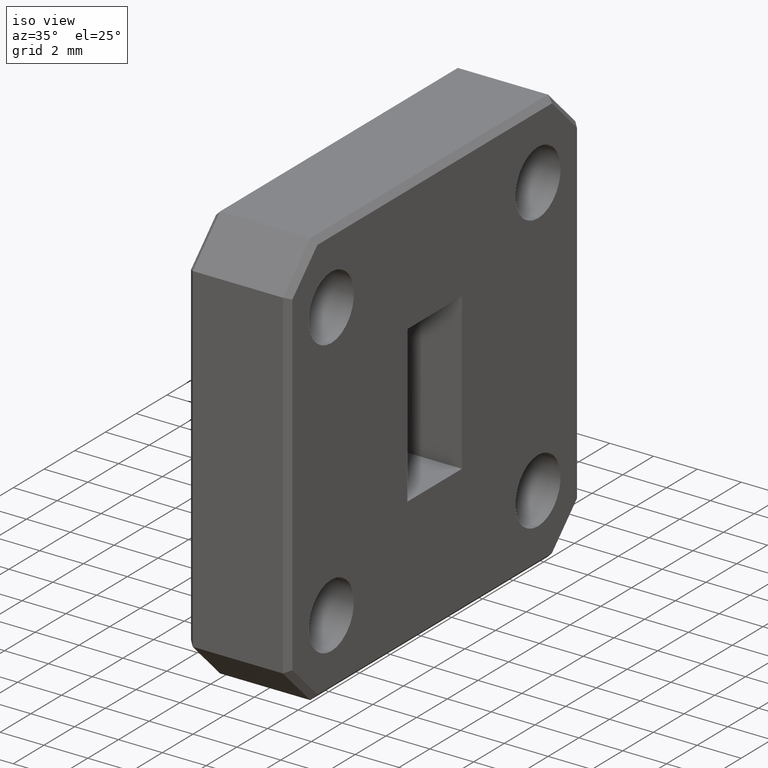
[diagram: clean part render]
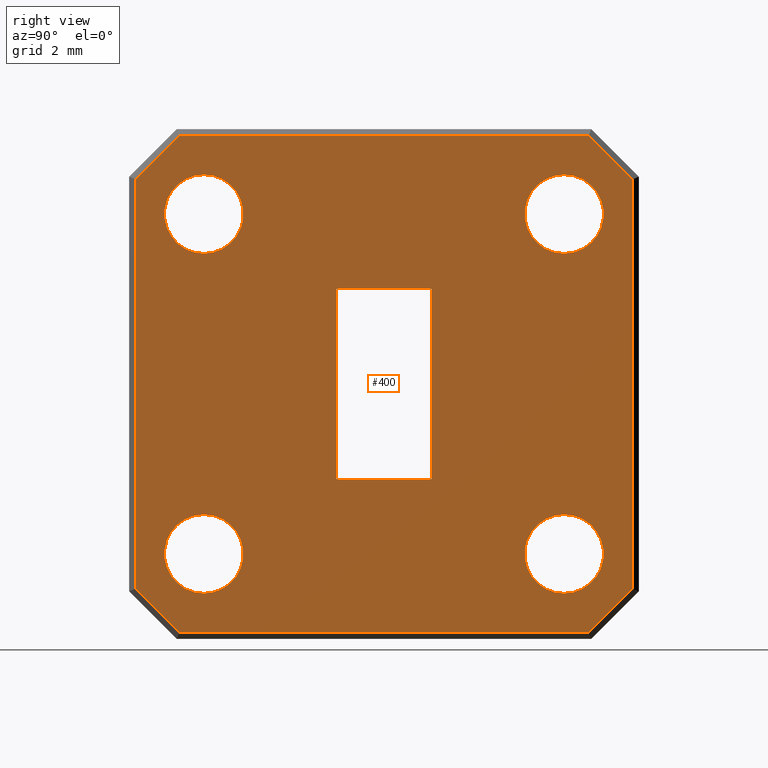
[diagram: tour spotlight — one face highlighted and labeled with its STEP entity id]
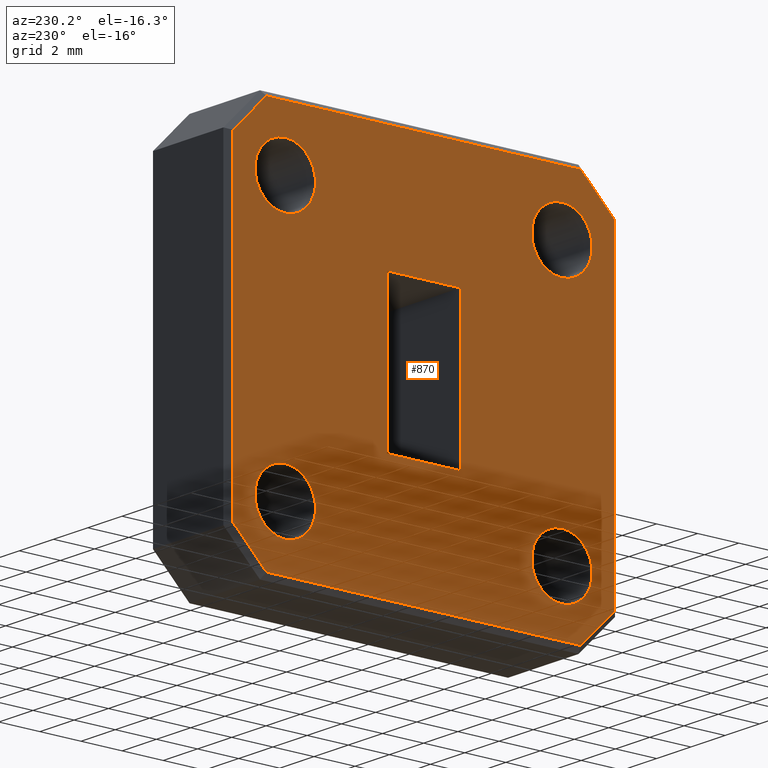
[diagram: tour spotlight — one face highlighted and labeled with its STEP entity id]
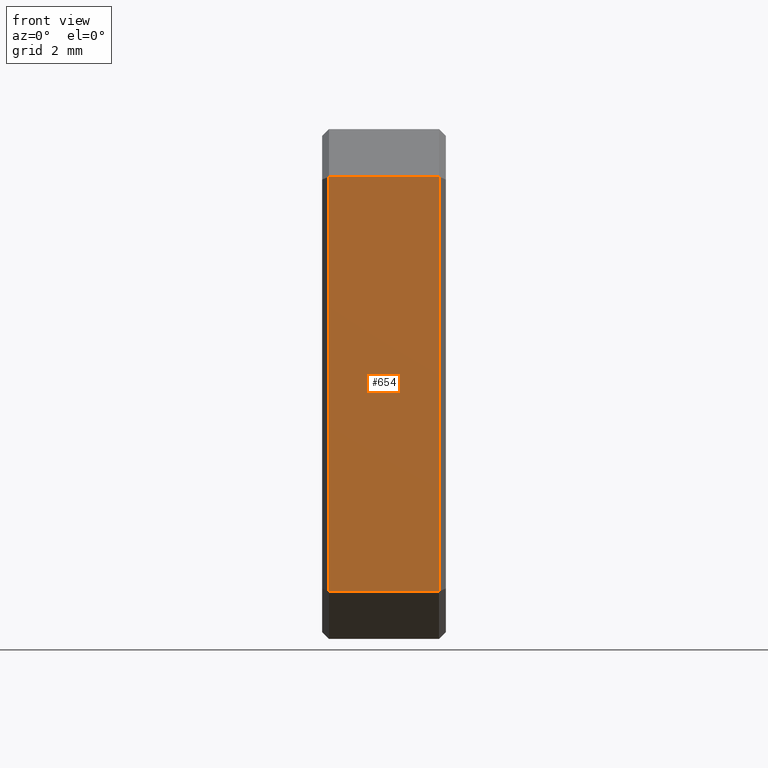
[diagram: tour spotlight — one face highlighted and labeled with its STEP entity id]
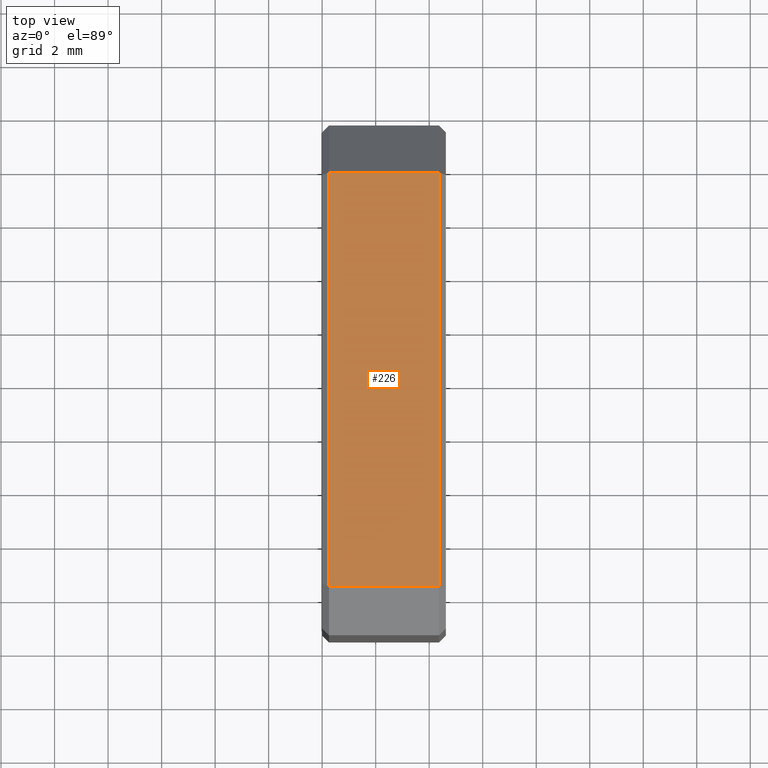
[diagram: tour spotlight — one face highlighted and labeled with its STEP entity id]
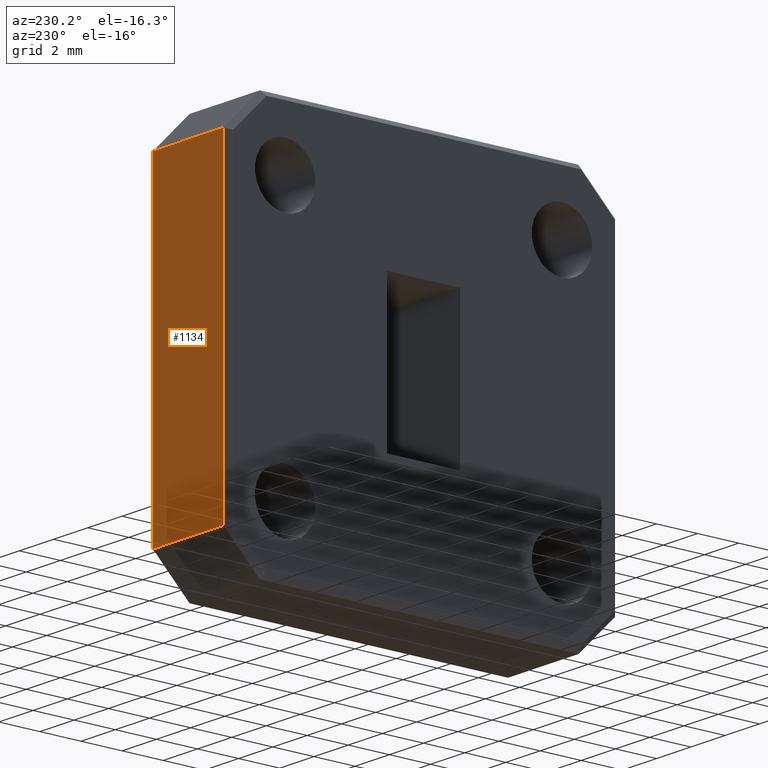
[diagram: tour spotlight — one face highlighted and labeled with its STEP entity id]
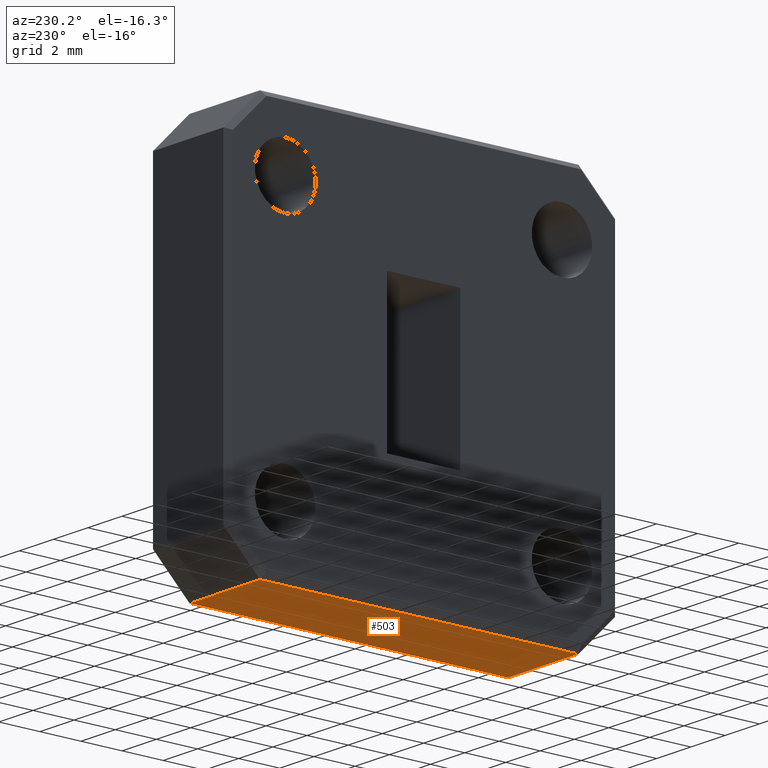
[diagram: tour spotlight — one face highlighted and labeled with its STEP entity id]
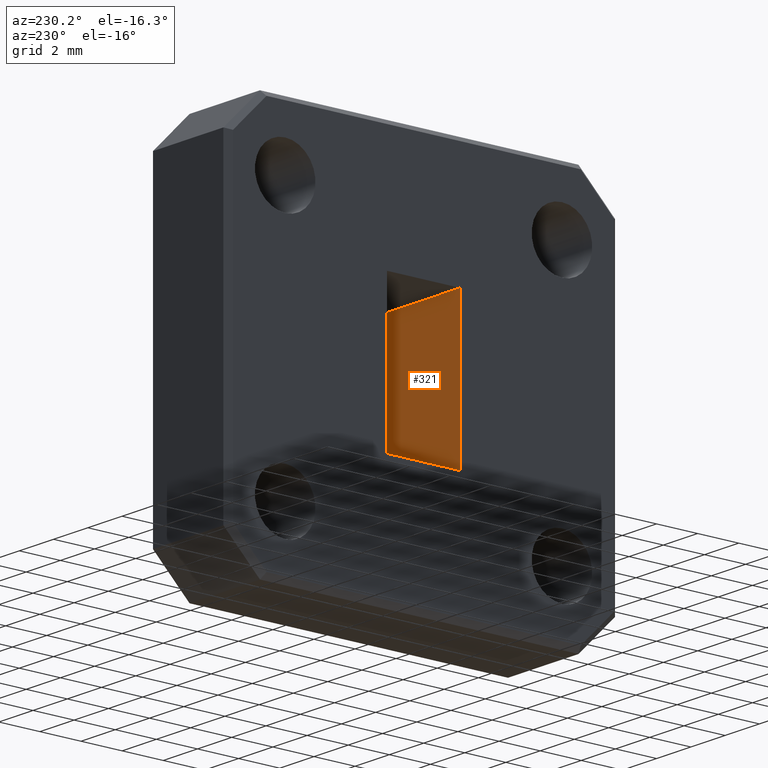
[diagram: tour spotlight — one face highlighted and labeled with its STEP entity id]
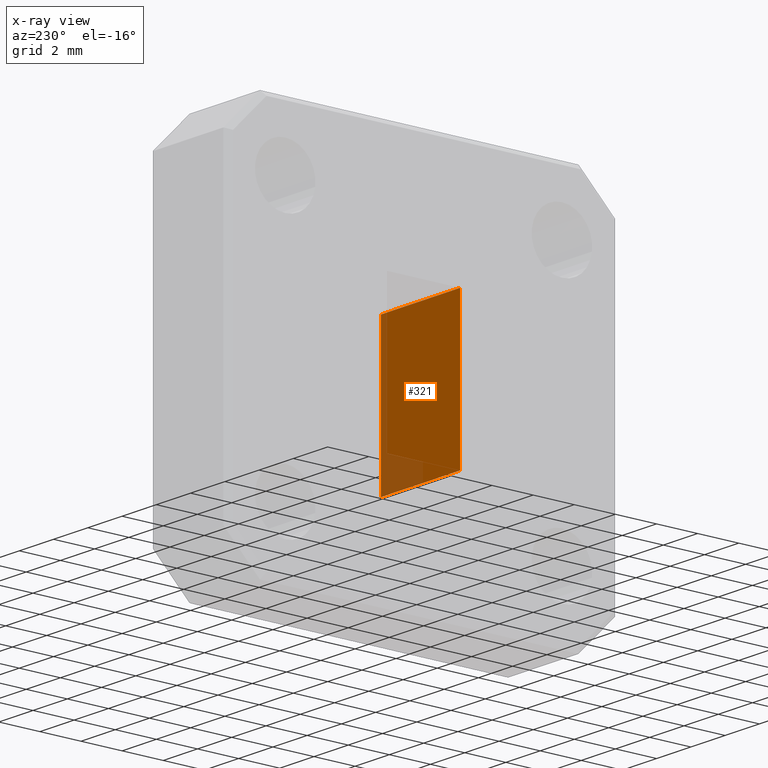
[diagram: x-ray of the same camera — body ghosted, this tour face saturated]
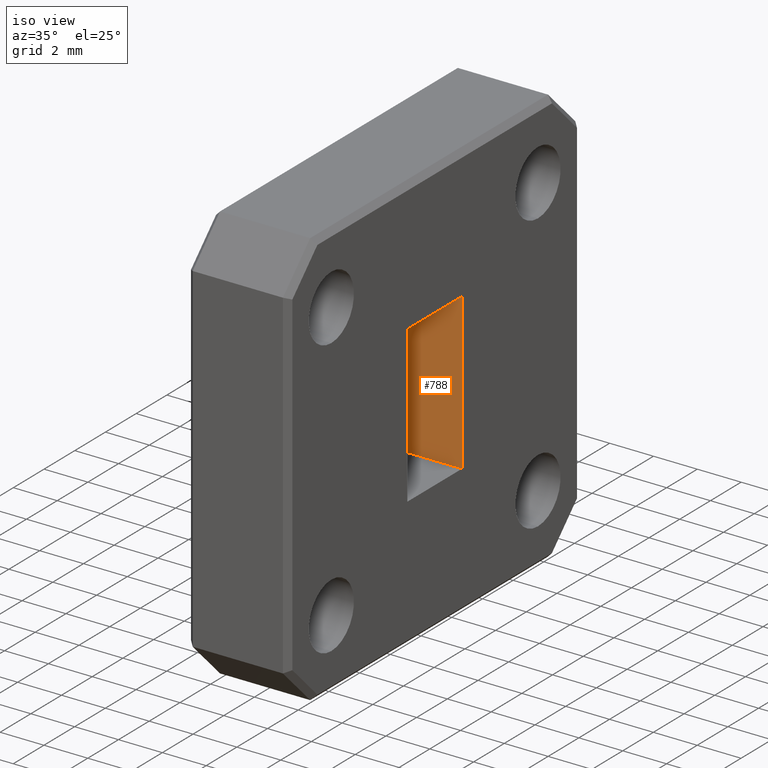
[diagram: tour spotlight — one face highlighted and labeled with its STEP entity id]
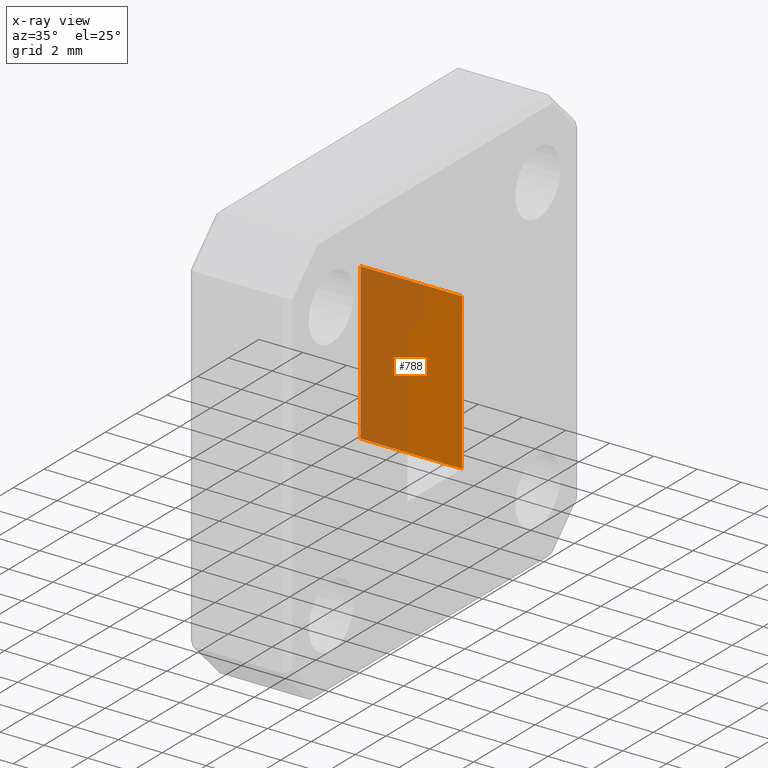
[diagram: x-ray of the same camera — body ghosted, this tour face saturated]
A machine part: a face-by-face anatomy tour. The part has 38 B-rep faces; the first image is the clean iso view, then the 8 largest visible faces are spotlighted one at a time (largest first), each with its STEP entity span.

Face 1 — right view, entity #400. In plain terms, the highlighted planar face has unit normal (1, -0, 0).
Definition (entity closure, byte-faithful):
#2 = EDGE_CURVE ( 'NONE', #771, #1099, #722, .T. ) ;
#6 = VERTEX_POINT ( 'NONE', #668 ) ;
#30 = DIRECTION ( 'NONE',  ( 0.0000000000000000000, 1.000000000000000000, 0.0000000000000000000 ) ) ;
#52 = CARTESIAN_POINT ( 'NONE',  ( 0.1820000000000000000, -0.3650000000000001600, -0.3008578643762689400 ) ) ;
#54 = EDGE_CURVE ( 'NONE', #158, #771, #574, .T. ) ;
#64 = CARTESIAN_POINT ( 'NONE',  ( 0.1820000000000000000, -0.06999999999999997900, 0.1400000000000000100 ) ) ;
#75 = DIRECTION ( 'NONE',  ( 1.000000000000000000, -0.0000000000000000000, -0.0000000000000000000 ) ) ;
#77 = CARTESIAN_POINT ( 'NONE',  ( 0.1820000000000000800, -0.2650000000000000100, 0.2500000000000000000 ) ) ;
#108 = VERTEX_POINT ( 'NONE', #52 ) ;
#118 = AXIS2_PLACEMENT_3D ( 'NONE', #501, #75, #693 ) ;
#127 = VECTOR ( 'NONE', #757, 39.37007874015748100 ) ;
#129 = CARTESIAN_POINT ( 'NONE',  ( 0.1820000000000000000, -0.3650000000000001600, -0.3049999999999998800 ) ) ;
#133 = EDGE_CURVE ( 'NONE', #1130, #902, #352, .T. ) ;
#138 = DIRECTION ( 'NONE',  ( 0.0000000000000000000, -0.7071067811865454600, 0.7071067811865495700 ) ) ;
#145 = CARTESIAN_POINT ( 'NONE',  ( 0.1820000000000000000, 0.3329289321881356300, 0.3329289321881336900 ) ) ;
#155 = LINE ( 'NONE', #283, #1097 ) ;
#158 = VERTEX_POINT ( 'NONE', #241 ) ;
#172 = CARTESIAN_POINT ( 'NONE',  ( 0.1820000000000000000, -0.06999999999999997900, 0.1400000000000000100 ) ) ;
#176 = AXIS2_PLACEMENT_3D ( 'NONE', #274, #923, #1187 ) ;
#177 = CARTESIAN_POINT ( 'NONE',  ( 0.1820000000000000800, 0.2650000000000000100, -0.2500000000000000000 ) ) ;
#182 = ORIENTED_EDGE ( 'NONE', *, *, #133, .T. ) ;
#188 = CARTESIAN_POINT ( 'NONE',  ( 0.1820000000000000800, 0.2650000000000000100, 0.2500000000000000000 ) ) ;
#194 = EDGE_LOOP ( 'NONE', ( #1158, #1144 ) ) ;
#196 = ORIENTED_EDGE ( 'NONE', *, *, #471, .F. ) ;
#200 = LINE ( 'NONE', #1177, #912 ) ;
#206 = ORIENTED_EDGE ( 'NONE', *, *, #887, .T. ) ;
#207 = CARTESIAN_POINT ( 'NONE',  ( 0.1820000000000000800, -0.2650000000000000100, 0.3079999999999995000 ) ) ;
#216 = FACE_BOUND ( 'NONE', #194, .T. ) ;
#218 = CIRCLE ( 'NONE', #1115, 0.05799999999999955900 ) ;
#225 = ORIENTED_EDGE ( 'NONE', *, *, #456, .F. ) ;
#236 = EDGE_LOOP ( 'NONE', ( #387, #196, #290, #645 ) ) ;
#237 = ORIENTED_EDGE ( 'NONE', *, *, #277, .F. ) ;
#241 = CARTESIAN_POINT ( 'NONE',  ( 0.1820000000000000000, 0.3650000000000001600, 0.3008578643762689900 ) ) ;
#246 = VERTEX_POINT ( 'NONE', #1065 ) ;
#252 = CIRCLE ( 'NONE', #176, 0.05799999999999948900 ) ;
#262 = DIRECTION ( 'NONE',  ( 1.000000000000000000, -0.0000000000000000000, -0.0000000000000000000 ) ) ;
#263 = ORIENTED_EDGE ( 'NONE', *, *, #992, .F. ) ;
#268 = FACE_BOUND ( 'NONE', #569, .T. ) ;
#269 = PLANE ( 'NONE',  #638 ) ;
#272 = CARTESIAN_POINT ( 'NONE',  ( 0.1820000000000000000, -0.3008578643762693800, -0.3650000000000000500 ) ) ;
#273 = CARTESIAN_POINT ( 'NONE',  ( 0.1820000000000000000, 0.07000000000000003400, -0.1400000000000000100 ) ) ;
#274 = CARTESIAN_POINT ( 'NONE',  ( 0.1820000000000000800, -0.2650000000000000100, 0.2500000000000000000 ) ) ;
#277 = EDGE_CURVE ( 'NONE', #499, #1162, #867, .T. ) ;
#282 = VECTOR ( 'NONE', #1102, 39.37007874015748100 ) ;
#283 = CARTESIAN_POINT ( 'NONE',  ( 0.1820000000000000000, 0.3049999999999996600, -0.3650000000000000500 ) ) ;
#290 = ORIENTED_EDGE ( 'NONE', *, *, #1003, .F. ) ;
#301 = LINE ( 'NONE', #337, #1030 ) ;
#307 = EDGE_CURVE ( 'NONE', #1160, #786, #548, .T. ) ;
#313 = VECTOR ( 'NONE', #795, 39.37007874015748100 ) ;
#320 = VERTEX_POINT ( 'NONE', #978 ) ;
#332 = DIRECTION ( 'NONE',  ( 0.0000000000000000000, 0.7071067811865489100, 0.7071067811865461300 ) ) ;
#337 = CARTESIAN_POINT ( 'NONE',  ( 0.1820000000000000000, 0.3650000000000001600, 0.3049999999999998800 ) ) ;
#352 = LINE ( 'NONE', #404, #1167 ) ;
#359 = EDGE_CURVE ( 'NONE', #989, #320, #808, .T. ) ;
#368 = VECTOR ( 'NONE', #526, 39.37007874015748100 ) ;
#387 = ORIENTED_EDGE ( 'NONE', *, *, #777, .F. ) ;
#390 = VERTEX_POINT ( 'NONE', #272 ) ;
#397 = CARTESIAN_POINT ( 'NONE',  ( 0.1820000000000000800, -0.2650000000000000100, -0.1920000000000005000 ) ) ;
#400 = ADVANCED_FACE ( 'NONE', ( #968, #618, #502, #268, #216, #928 ), #269, .T. ) ;
#402 = ORIENTED_EDGE ( 'NONE', *, *, #939, .F. ) ;
#404 = CARTESIAN_POINT ( 'NONE',  ( 0.1820000000000000000, 0.3329289321881339600, -0.3329289321881352400 ) ) ;
#420 = DIRECTION ( 'NONE',  ( 1.000000000000000000, -0.0000000000000000000, -0.0000000000000000000 ) ) ;
#440 = CARTESIAN_POINT ( 'NONE',  ( 0.1820000000000000800, 0.2650000000000000100, 0.3079999999999995500 ) ) ;
#443 = CARTESIAN_POINT ( 'NONE',  ( 0.1820000000000000000, 0.0000000000000000000, 0.0000000000000000000 ) ) ;
#446 = DIRECTION ( 'NONE',  ( 0.0000000000000000000, 0.0000000000000000000, -1.000000000000000000 ) ) ;
#447 = DIRECTION ( 'NONE',  ( 1.000000000000000000, -0.0000000000000000000, 0.0000000000000000000 ) ) ;
#452 = LINE ( 'NONE', #172, #368 ) ;
#456 = EDGE_CURVE ( 'NONE', #1106, #1074, #1053, .T. ) ;
#460 = VERTEX_POINT ( 'NONE', #807 ) ;
#469 = CARTESIAN_POINT ( 'NONE',  ( 0.1820000000000000000, 0.3008578643762693200, 0.3650000000000002100 ) ) ;
#471 = EDGE_CURVE ( 'NONE', #460, #1090, #200, .T. ) ;
#477 = CIRCLE ( 'NONE', #118, 0.05799999999999948900 ) ;
#499 = VERTEX_POINT ( 'NONE', #1071 ) ;
#501 = CARTESIAN_POINT ( 'NONE',  ( 0.1820000000000000800, -0.2650000000000000100, -0.2500000000000000000 ) ) ;
#502 = FACE_BOUND ( 'NONE', #770, .T. ) ;
#506 = EDGE_CURVE ( 'NONE', #108, #390, #840, .T. ) ;
#526 = DIRECTION ( 'NONE',  ( 0.0000000000000000000, 0.0000000000000000000, -1.000000000000000000 ) ) ;
#528 = AXIS2_PLACEMENT_3D ( 'NONE', #77, #797, #983 ) ;
#548 = CIRCLE ( 'NONE', #1141, 0.05799999999999948900 ) ;
#559 = CARTESIAN_POINT ( 'NONE',  ( 0.1820000000000000000, -0.3329289321881340200, 0.3329289321881347400 ) ) ;
#567 = ORIENTED_EDGE ( 'NONE', *, *, #724, .T. ) ;
#569 = EDGE_LOOP ( 'NONE', ( #225, #263 ) ) ;
#574 = LINE ( 'NONE', #145, #898 ) ;
#598 = VECTOR ( 'NONE', #937, 39.37007874015748100 ) ;
#600 = CARTESIAN_POINT ( 'NONE',  ( 0.1820000000000000800, -0.2650000000000000100, -0.2500000000000000000 ) ) ;
#616 = DIRECTION ( 'NONE',  ( 0.0000000000000000000, 0.0000000000000000000, -1.000000000000000000 ) ) ;
#618 = FACE_BOUND ( 'NONE', #874, .T. ) ;
#621 = CARTESIAN_POINT ( 'NONE',  ( 0.1820000000000000800, 0.2650000000000000100, -0.2500000000000000000 ) ) ;
#626 = ORIENTED_EDGE ( 'NONE', *, *, #54, .T. ) ;
#629 = VERTEX_POINT ( 'NONE', #918 ) ;
#630 = DIRECTION ( 'NONE',  ( 0.0000000000000000000, 0.0000000000000000000, -1.000000000000000000 ) ) ;
#637 = DIRECTION ( 'NONE',  ( 0.0000000000000000000, 0.0000000000000000000, -1.000000000000000000 ) ) ;
#638 = AXIS2_PLACEMENT_3D ( 'NONE', #443, #447, #630 ) ;
#641 = EDGE_CURVE ( 'NONE', #1162, #499, #252, .T. ) ;
#642 = CARTESIAN_POINT ( 'NONE',  ( 0.1820000000000000800, -0.2650000000000000100, -0.3079999999999995000 ) ) ;
#645 = ORIENTED_EDGE ( 'NONE', *, *, #880, .F. ) ;
#667 = DIRECTION ( 'NONE',  ( 0.0000000000000000000, -1.000000000000000000, -1.821231995776175700E-016 ) ) ;
#668 = CARTESIAN_POINT ( 'NONE',  ( 0.1820000000000000000, 0.07000000000000003400, 0.1400000000000000100 ) ) ;
#678 = EDGE_CURVE ( 'NONE', #390, #1130, #155, .T. ) ;
#693 = DIRECTION ( 'NONE',  ( 0.0000000000000000000, 0.0000000000000000000, -1.000000000000000000 ) ) ;
#694 = AXIS2_PLACEMENT_3D ( 'NONE', #177, #982, #446 ) ;
#695 = ORIENTED_EDGE ( 'NONE', *, *, #2, .T. ) ;
#703 = LINE ( 'NONE', #129, #127 ) ;
#718 = LINE ( 'NONE', #64, #313 ) ;
#722 = LINE ( 'NONE', #1032, #778 ) ;
#724 = EDGE_CURVE ( 'NONE', #246, #108, #703, .T. ) ;
#747 = EDGE_CURVE ( 'NONE', #1099, #246, #1110, .T. ) ;
#757 = DIRECTION ( 'NONE',  ( 0.0000000000000000000, 0.0000000000000000000, -1.000000000000000000 ) ) ;
#770 = EDGE_LOOP ( 'NONE', ( #402, #1131 ) ) ;
#771 = VERTEX_POINT ( 'NONE', #469 ) ;
#777 = EDGE_CURVE ( 'NONE', #1090, #6, #1150, .T. ) ;
#778 = VECTOR ( 'NONE', #667, 39.37007874015748100 ) ;
#786 = VERTEX_POINT ( 'NONE', #397 ) ;
#789 = DIRECTION ( 'NONE',  ( 0.0000000000000000000, 0.0000000000000000000, 1.000000000000000000 ) ) ;
#795 = DIRECTION ( 'NONE',  ( -0.0000000000000000000, -1.000000000000000000, -0.0000000000000000000 ) ) ;
#797 = DIRECTION ( 'NONE',  ( 1.000000000000000000, -0.0000000000000000000, -0.0000000000000000000 ) ) ;
#799 = EDGE_CURVE ( 'NONE', #786, #1160, #477, .T. ) ;
#807 = CARTESIAN_POINT ( 'NONE',  ( 0.1820000000000000000, -0.06999999999999997900, -0.1399999999999999900 ) ) ;
#808 = CIRCLE ( 'NONE', #876, 0.05799999999999952400 ) ;
#820 = CARTESIAN_POINT ( 'NONE',  ( 0.1820000000000000800, 0.2650000000000000100, -0.1920000000000004800 ) ) ;
#840 = LINE ( 'NONE', #986, #282 ) ;
#845 = ORIENTED_EDGE ( 'NONE', *, *, #678, .T. ) ;
#867 = CIRCLE ( 'NONE', #528, 0.05799999999999948900 ) ;
#874 = EDGE_LOOP ( 'NONE', ( #237, #1060 ) ) ;
#876 = AXIS2_PLACEMENT_3D ( 'NONE', #188, #1001, #637 ) ;
#880 = EDGE_CURVE ( 'NONE', #6, #629, #718, .T. ) ;
#887 = EDGE_CURVE ( 'NONE', #902, #158, #301, .T. ) ;
#892 = ORIENTED_EDGE ( 'NONE', *, *, #747, .T. ) ;
#894 = DIRECTION ( 'NONE',  ( 1.000000000000000000, -0.0000000000000000000, -0.0000000000000000000 ) ) ;
#895 = VECTOR ( 'NONE', #1031, 39.37007874015748100 ) ;
#898 = VECTOR ( 'NONE', #138, 39.37007874015748100 ) ;
#901 = DIRECTION ( 'NONE',  ( 0.0000000000000000000, 1.000000000000000000, -2.439149994343092200E-016 ) ) ;
#902 = VERTEX_POINT ( 'NONE', #1149 ) ;
#912 = VECTOR ( 'NONE', #901, 39.37007874015748100 ) ;
#918 = CARTESIAN_POINT ( 'NONE',  ( 0.1820000000000000000, -0.06999999999999997900, 0.1400000000000000100 ) ) ;
#923 = DIRECTION ( 'NONE',  ( 1.000000000000000000, -0.0000000000000000000, -0.0000000000000000000 ) ) ;
#928 = FACE_OUTER_BOUND ( 'NONE', #938, .T. ) ;
#937 = DIRECTION ( 'NONE',  ( -0.0000000000000000000, -0.0000000000000000000, 1.000000000000000000 ) ) ;
#938 = EDGE_LOOP ( 'NONE', ( #206, #626, #695, #892, #567, #953, #845, #182 ) ) ;
#939 = EDGE_CURVE ( 'NONE', #320, #989, #1128, .T. ) ;
#953 = ORIENTED_EDGE ( 'NONE', *, *, #506, .T. ) ;
#968 = FACE_BOUND ( 'NONE', #236, .T. ) ;
#975 = CARTESIAN_POINT ( 'NONE',  ( 0.1820000000000000800, 0.2650000000000000100, 0.2500000000000000000 ) ) ;
#978 = CARTESIAN_POINT ( 'NONE',  ( 0.1820000000000000800, 0.2650000000000000100, 0.1920000000000004800 ) ) ;
#982 = DIRECTION ( 'NONE',  ( 1.000000000000000000, -0.0000000000000000000, -0.0000000000000000000 ) ) ;
#983 = DIRECTION ( 'NONE',  ( 0.0000000000000000000, 0.0000000000000000000, -1.000000000000000000 ) ) ;
#986 = CARTESIAN_POINT ( 'NONE',  ( 0.1820000000000000000, -0.3329289321881356300, -0.3329289321881336900 ) ) ;
#989 = VERTEX_POINT ( 'NONE', #440 ) ;
#992 = EDGE_CURVE ( 'NONE', #1074, #1106, #218, .T. ) ;
#1001 = DIRECTION ( 'NONE',  ( 1.000000000000000000, -0.0000000000000000000, -0.0000000000000000000 ) ) ;
#1003 = EDGE_CURVE ( 'NONE', #629, #460, #452, .T. ) ;
#1015 = CARTESIAN_POINT ( 'NONE',  ( 0.1820000000000000000, -0.3008578643762686000, 0.3650000000000000500 ) ) ;
#1023 = CARTESIAN_POINT ( 'NONE',  ( 0.1820000000000000000, 0.3008578643762690500, -0.3650000000000000500 ) ) ;
#1030 = VECTOR ( 'NONE', #789, 39.37007874015748100 ) ;
#1031 = DIRECTION ( 'NONE',  ( 0.0000000000000000000, -0.7071067811865482400, -0.7071067811865468000 ) ) ;
#1032 = CARTESIAN_POINT ( 'NONE',  ( 0.1820000000000000000, -0.3049999999999996600, 0.3650000000000000500 ) ) ;
#1053 = CIRCLE ( 'NONE', #694, 0.05799999999999955900 ) ;
#1054 = AXIS2_PLACEMENT_3D ( 'NONE', #975, #420, #1070 ) ;
#1060 = ORIENTED_EDGE ( 'NONE', *, *, #641, .F. ) ;
#1065 = CARTESIAN_POINT ( 'NONE',  ( 0.1820000000000000000, -0.3650000000000001600, 0.3008578643762687100 ) ) ;
#1070 = DIRECTION ( 'NONE',  ( 0.0000000000000000000, 0.0000000000000000000, -1.000000000000000000 ) ) ;
#1071 = CARTESIAN_POINT ( 'NONE',  ( 0.1820000000000000800, -0.2650000000000000100, 0.1920000000000005000 ) ) ;
#1074 = VERTEX_POINT ( 'NONE', #820 ) ;
#1090 = VERTEX_POINT ( 'NONE', #273 ) ;
#1097 = VECTOR ( 'NONE', #30, 39.37007874015748100 ) ;
#1099 = VERTEX_POINT ( 'NONE', #1015 ) ;
#1102 = DIRECTION ( 'NONE',  ( 0.0000000000000000000, 0.7071067811865454600, -0.7071067811865495700 ) ) ;
#1106 = VERTEX_POINT ( 'NONE', #1172 ) ;
#1110 = LINE ( 'NONE', #559, #895 ) ;
#1115 = AXIS2_PLACEMENT_3D ( 'NONE', #621, #262, #616 ) ;
#1116 = CARTESIAN_POINT ( 'NONE',  ( 0.1820000000000000000, 0.07000000000000003400, 0.1400000000000000100 ) ) ;
#1128 = CIRCLE ( 'NONE', #1054, 0.05799999999999952400 ) ;
#1130 = VERTEX_POINT ( 'NONE', #1023 ) ;
#1131 = ORIENTED_EDGE ( 'NONE', *, *, #359, .F. ) ;
#1141 = AXIS2_PLACEMENT_3D ( 'NONE', #600, #894, #1159 ) ;
#1144 = ORIENTED_EDGE ( 'NONE', *, *, #799, .F. ) ;
#1149 = CARTESIAN_POINT ( 'NONE',  ( 0.1820000000000000000, 0.3650000000000001600, -0.3008578643762692100 ) ) ;
#1150 = LINE ( 'NONE', #1116, #598 ) ;
#1158 = ORIENTED_EDGE ( 'NONE', *, *, #307, .F. ) ;
#1159 = DIRECTION ( 'NONE',  ( 0.0000000000000000000, 0.0000000000000000000, -1.000000000000000000 ) ) ;
#1160 = VERTEX_POINT ( 'NONE', #642 ) ;
#1162 = VERTEX_POINT ( 'NONE', #207 ) ;
#1167 = VECTOR ( 'NONE', #332, 39.37007874015748100 ) ;
#1172 = CARTESIAN_POINT ( 'NONE',  ( 0.1820000000000000800, 0.2650000000000000100, -0.3079999999999995500 ) ) ;
#1177 = CARTESIAN_POINT ( 'NONE',  ( 0.1820000000000000000, -0.06999999999999997900, -0.1399999999999999900 ) ) ;
#1187 = DIRECTION ( 'NONE',  ( 0.0000000000000000000, 0.0000000000000000000, -1.000000000000000000 ) ) ;

Face 2 — auxiliary view, entity #870. In plain terms, the highlighted planar face has unit normal (1, -0, 0).
Definition (entity closure, byte-faithful):
#11 = EDGE_CURVE ( 'NONE', #250, #787, #751, .T. ) ;
#13 = CIRCLE ( 'NONE', #617, 0.05799999999999973200 ) ;
#18 = CARTESIAN_POINT ( 'NONE',  ( 0.0000000000000000000, -0.2650000000000000100, 0.1920000000000002500 ) ) ;
#20 = ORIENTED_EDGE ( 'NONE', *, *, #197, .T. ) ;
#21 = EDGE_LOOP ( 'NONE', ( #442, #38 ) ) ;
#27 = EDGE_CURVE ( 'NONE', #364, #483, #689, .T. ) ;
#32 = AXIS2_PLACEMENT_3D ( 'NONE', #595, #244, #701 ) ;
#37 = ORIENTED_EDGE ( 'NONE', *, *, #374, .F. ) ;
#38 = ORIENTED_EDGE ( 'NONE', *, *, #1058, .T. ) ;
#44 = VERTEX_POINT ( 'NONE', #755 ) ;
#47 = ORIENTED_EDGE ( 'NONE', *, *, #551, .T. ) ;
#59 = CARTESIAN_POINT ( 'NONE',  ( 0.0000000000000000000, 0.0000000000000000000, 0.0000000000000000000 ) ) ;
#60 = CARTESIAN_POINT ( 'NONE',  ( 0.0000000000000000000, -0.3649999999999999900, 0.3008578643762688200 ) ) ;
#66 = ORIENTED_EDGE ( 'NONE', *, *, #631, .T. ) ;
#67 = CARTESIAN_POINT ( 'NONE',  ( 0.0000000000000000000, 0.2979289321881343800, -0.3679289321881346100 ) ) ;
#70 = AXIS2_PLACEMENT_3D ( 'NONE', #432, #85, #76 ) ;
#72 = CIRCLE ( 'NONE', #70, 0.05799999999999969800 ) ;
#76 = DIRECTION ( 'NONE',  ( 0.0000000000000000000, 0.0000000000000000000, -1.000000000000000000 ) ) ;
#78 = CARTESIAN_POINT ( 'NONE',  ( 0.0000000000000000000, 0.2650000000000000100, -0.1920000000000002500 ) ) ;
#79 = VERTEX_POINT ( 'NONE', #970 ) ;
#85 = DIRECTION ( 'NONE',  ( 1.000000000000000000, -0.0000000000000000000, 0.0000000000000000000 ) ) ;
#89 = CARTESIAN_POINT ( 'NONE',  ( 0.0000000000000000000, 0.3008578643762690500, -0.3649999999999999400 ) ) ;
#90 = AXIS2_PLACEMENT_3D ( 'NONE', #162, #1170, #160 ) ;
#93 = EDGE_CURVE ( 'NONE', #165, #250, #868, .T. ) ;
#106 = DIRECTION ( 'NONE',  ( 0.0000000000000000000, -1.000000000000000000, 0.0000000000000000000 ) ) ;
#130 = LINE ( 'NONE', #800, #355 ) ;
#134 = DIRECTION ( 'NONE',  ( -0.0000000000000000000, -1.000000000000000000, 2.439149994343092200E-016 ) ) ;
#146 = ORIENTED_EDGE ( 'NONE', *, *, #1085, .F. ) ;
#160 = DIRECTION ( 'NONE',  ( 0.0000000000000000000, 0.0000000000000000000, -1.000000000000000000 ) ) ;
#161 = DIRECTION ( 'NONE',  ( 0.0000000000000000000, 0.0000000000000000000, -1.000000000000000000 ) ) ;
#162 = CARTESIAN_POINT ( 'NONE',  ( 0.0000000000000000000, 0.2650000000000000100, 0.2500000000000000000 ) ) ;
#165 = VERTEX_POINT ( 'NONE', #676 ) ;
#168 = LINE ( 'NONE', #728, #1010 ) ;
#175 = DIRECTION ( 'NONE',  ( 1.000000000000000000, -0.0000000000000000000, 0.0000000000000000000 ) ) ;
#185 = FACE_BOUND ( 'NONE', #801, .T. ) ;
#190 = CARTESIAN_POINT ( 'NONE',  ( 0.0000000000000000000, -0.2650000000000000100, -0.2500000000000000000 ) ) ;
#197 = EDGE_CURVE ( 'NONE', #223, #165, #1111, .T. ) ;
#208 = ORIENTED_EDGE ( 'NONE', *, *, #871, .T. ) ;
#211 = CARTESIAN_POINT ( 'NONE',  ( 0.0000000000000000000, 0.3649999999999999900, 0.3008578643762689400 ) ) ;
#213 = CARTESIAN_POINT ( 'NONE',  ( 0.0000000000000000000, 0.3679289321881344900, 0.2979289321881344300 ) ) ;
#223 = VERTEX_POINT ( 'NONE', #60 ) ;
#233 = DIRECTION ( 'NONE',  ( 0.0000000000000000000, 1.000000000000000000, 1.821231995776175700E-016 ) ) ;
#240 = LINE ( 'NONE', #67, #733 ) ;
#244 = DIRECTION ( 'NONE',  ( 1.000000000000000000, -0.0000000000000000000, 0.0000000000000000000 ) ) ;
#245 = EDGE_CURVE ( 'NONE', #644, #1037, #240, .T. ) ;
#250 = VERTEX_POINT ( 'NONE', #705 ) ;
#253 = EDGE_CURVE ( 'NONE', #483, #495, #465, .T. ) ;
#254 = CIRCLE ( 'NONE', #90, 0.05799999999999973200 ) ;
#257 = DIRECTION ( 'NONE',  ( 0.0000000000000000000, 0.0000000000000000000, -1.000000000000000000 ) ) ;
#259 = CARTESIAN_POINT ( 'NONE',  ( 0.0000000000000000000, -0.06999999999999999300, 0.1400000000000000100 ) ) ;
#265 = DIRECTION ( 'NONE',  ( 0.0000000000000000000, 1.000000000000000000, 0.0000000000000000000 ) ) ;
#299 = LINE ( 'NONE', #822, #995 ) ;
#315 = EDGE_CURVE ( 'NONE', #79, #756, #254, .T. ) ;
#319 = AXIS2_PLACEMENT_3D ( 'NONE', #1066, #1157, #257 ) ;
#329 = ORIENTED_EDGE ( 'NONE', *, *, #479, .T. ) ;
#343 = CARTESIAN_POINT ( 'NONE',  ( 0.0000000000000000000, -0.06999999999999999300, 0.1400000000000000100 ) ) ;
#355 = VECTOR ( 'NONE', #884, 39.37007874015748100 ) ;
#364 = VERTEX_POINT ( 'NONE', #537 ) ;
#374 = EDGE_CURVE ( 'NONE', #495, #399, #299, .T. ) ;
#385 = CARTESIAN_POINT ( 'NONE',  ( 0.0000000000000000000, 0.2650000000000000100, 0.1920000000000002500 ) ) ;
#396 = ORIENTED_EDGE ( 'NONE', *, *, #245, .T. ) ;
#399 = VERTEX_POINT ( 'NONE', #623 ) ;
#427 = ORIENTED_EDGE ( 'NONE', *, *, #11, .T. ) ;
#429 = EDGE_CURVE ( 'NONE', #873, #44, #72, .T. ) ;
#432 = CARTESIAN_POINT ( 'NONE',  ( 0.0000000000000000000, -0.2650000000000000100, -0.2500000000000000000 ) ) ;
#434 = DIRECTION ( 'NONE',  ( 0.0000000000000000000, 0.0000000000000000000, 1.000000000000000000 ) ) ;
#441 = CARTESIAN_POINT ( 'NONE',  ( 0.0000000000000000000, -0.06999999999999999300, -0.1399999999999999900 ) ) ;
#442 = ORIENTED_EDGE ( 'NONE', *, *, #429, .T. ) ;
#455 = DIRECTION ( 'NONE',  ( 1.000000000000000000, -0.0000000000000000000, 0.0000000000000000000 ) ) ;
#463 = CARTESIAN_POINT ( 'NONE',  ( 0.0000000000000000000, -0.2650000000000000100, 0.2500000000000000000 ) ) ;
#465 = LINE ( 'NONE', #343, #750 ) ;
#467 = CARTESIAN_POINT ( 'NONE',  ( 0.0000000000000000000, 0.3649999999999999900, 0.0000000000000000000 ) ) ;
#473 = EDGE_LOOP ( 'NONE', ( #1017, #890 ) ) ;
#479 = EDGE_CURVE ( 'NONE', #513, #922, #791, .T. ) ;
#481 = DIRECTION ( 'NONE',  ( 1.000000000000000000, -0.0000000000000000000, 0.0000000000000000000 ) ) ;
#483 = VERTEX_POINT ( 'NONE', #441 ) ;
#492 = CARTESIAN_POINT ( 'NONE',  ( 0.0000000000000000000, -6.647496784583041200E-017, 0.3649999999999999900 ) ) ;
#495 = VERTEX_POINT ( 'NONE', #259 ) ;
#513 = VERTEX_POINT ( 'NONE', #927 ) ;
#515 = PLANE ( 'NONE',  #1151 ) ;
#517 = LINE ( 'NONE', #467, #599 ) ;
#519 = VECTOR ( 'NONE', #1147, 39.37007874015748100 ) ;
#522 = DIRECTION ( 'NONE',  ( 1.000000000000000000, -0.0000000000000000000, 0.0000000000000000000 ) ) ;
#531 = EDGE_CURVE ( 'NONE', #1073, #542, #546, .T. ) ;
#537 = CARTESIAN_POINT ( 'NONE',  ( 0.0000000000000000000, 0.07000000000000002100, -0.1400000000000000100 ) ) ;
#542 = VERTEX_POINT ( 'NONE', #18 ) ;
#545 = CARTESIAN_POINT ( 'NONE',  ( 0.0000000000000000000, -0.3679289321881345500, -0.2979289321881344300 ) ) ;
#546 = CIRCLE ( 'NONE', #1075, 0.05799999999999973200 ) ;
#549 = LINE ( 'NONE', #915, #946 ) ;
#551 = EDGE_CURVE ( 'NONE', #787, #644, #517, .T. ) ;
#555 = CARTESIAN_POINT ( 'NONE',  ( 0.0000000000000000000, 0.3649999999999999900, -0.3008578643762692700 ) ) ;
#595 = CARTESIAN_POINT ( 'NONE',  ( 0.0000000000000000000, 0.2650000000000000100, -0.2500000000000000000 ) ) ;
#599 = VECTOR ( 'NONE', #1093, 39.37007874015748100 ) ;
#617 = AXIS2_PLACEMENT_3D ( 'NONE', #1034, #481, #1121 ) ;
#619 = VECTOR ( 'NONE', #233, 39.37007874015748100 ) ;
#623 = CARTESIAN_POINT ( 'NONE',  ( 0.0000000000000000000, 0.07000000000000002100, 0.1400000000000000100 ) ) ;
#631 = EDGE_CURVE ( 'NONE', #1037, #818, #168, .T. ) ;
#632 = CARTESIAN_POINT ( 'NONE',  ( 0.0000000000000000000, -0.2650000000000000100, 0.3079999999999997700 ) ) ;
#644 = VERTEX_POINT ( 'NONE', #555 ) ;
#661 = CARTESIAN_POINT ( 'NONE',  ( 0.0000000000000000000, -0.3008578643762693800, -0.3649999999999999400 ) ) ;
#663 = FACE_BOUND ( 'NONE', #1088, .T. ) ;
#676 = CARTESIAN_POINT ( 'NONE',  ( 0.0000000000000000000, -0.3008578643762687700, 0.3649999999999999400 ) ) ;
#689 = LINE ( 'NONE', #752, #1153 ) ;
#691 = CIRCLE ( 'NONE', #319, 0.05799999999999973200 ) ;
#701 = DIRECTION ( 'NONE',  ( 0.0000000000000000000, 0.0000000000000000000, -1.000000000000000000 ) ) ;
#705 = CARTESIAN_POINT ( 'NONE',  ( 0.0000000000000000000, 0.3008578643762692100, 0.3650000000000000500 ) ) ;
#728 = CARTESIAN_POINT ( 'NONE',  ( 0.0000000000000000000, -0.0000000000000000000, -0.3649999999999999400 ) ) ;
#730 = DIRECTION ( 'NONE',  ( 0.0000000000000000000, 0.0000000000000000000, -1.000000000000000000 ) ) ;
#733 = VECTOR ( 'NONE', #972, 39.37007874015748100 ) ;
#738 = EDGE_CURVE ( 'NONE', #542, #1073, #13, .T. ) ;
#742 = ORIENTED_EDGE ( 'NONE', *, *, #93, .T. ) ;
#749 = FACE_BOUND ( 'NONE', #473, .T. ) ;
#750 = VECTOR ( 'NONE', #434, 39.37007874015748100 ) ;
#751 = LINE ( 'NONE', #213, #943 ) ;
#752 = CARTESIAN_POINT ( 'NONE',  ( 0.0000000000000000000, -0.06999999999999999300, -0.1399999999999999900 ) ) ;
#755 = CARTESIAN_POINT ( 'NONE',  ( 0.0000000000000000000, -0.2650000000000000100, -0.1920000000000002500 ) ) ;
#756 = VERTEX_POINT ( 'NONE', #385 ) ;
#758 = ORIENTED_EDGE ( 'NONE', *, *, #963, .T. ) ;
#761 = DIRECTION ( 'NONE',  ( 0.0000000000000000000, 0.7071067811865454600, -0.7071067811865495700 ) ) ;
#766 = VECTOR ( 'NONE', #934, 39.37007874015748100 ) ;
#767 = AXIS2_PLACEMENT_3D ( 'NONE', #190, #175, #1091 ) ;
#785 = ORIENTED_EDGE ( 'NONE', *, *, #27, .F. ) ;
#787 = VERTEX_POINT ( 'NONE', #211 ) ;
#791 = CIRCLE ( 'NONE', #824, 0.05799999999999969800 ) ;
#800 = CARTESIAN_POINT ( 'NONE',  ( 0.0000000000000000000, -0.3649999999999999900, 0.0000000000000000000 ) ) ;
#801 = EDGE_LOOP ( 'NONE', ( #863, #974 ) ) ;
#802 = DIRECTION ( 'NONE',  ( 0.0000000000000000000, 0.0000000000000000000, -1.000000000000000000 ) ) ;
#813 = DIRECTION ( 'NONE',  ( 1.000000000000000000, -0.0000000000000000000, 0.0000000000000000000 ) ) ;
#818 = VERTEX_POINT ( 'NONE', #661 ) ;
#821 = EDGE_LOOP ( 'NONE', ( #329, #208 ) ) ;
#822 = CARTESIAN_POINT ( 'NONE',  ( 0.0000000000000000000, -0.06999999999999999300, 0.1400000000000000100 ) ) ;
#824 = AXIS2_PLACEMENT_3D ( 'NONE', #1087, #813, #802 ) ;
#826 = DIRECTION ( 'NONE',  ( 0.0000000000000000000, 0.0000000000000000000, -1.000000000000000000 ) ) ;
#835 = EDGE_LOOP ( 'NONE', ( #66, #996, #758, #20, #742, #427, #47, #396 ) ) ;
#852 = CIRCLE ( 'NONE', #32, 0.05799999999999969800 ) ;
#856 = LINE ( 'NONE', #545, #766 ) ;
#863 = ORIENTED_EDGE ( 'NONE', *, *, #738, .T. ) ;
#868 = LINE ( 'NONE', #492, #619 ) ;
#870 = ADVANCED_FACE ( 'NONE', ( #663, #185, #749, #993, #1124, #1095 ), #515, .F. ) ;
#871 = EDGE_CURVE ( 'NONE', #922, #513, #852, .T. ) ;
#873 = VERTEX_POINT ( 'NONE', #1166 ) ;
#884 = DIRECTION ( 'NONE',  ( 0.0000000000000000000, 0.0000000000000000000, 1.000000000000000000 ) ) ;
#890 = ORIENTED_EDGE ( 'NONE', *, *, #315, .T. ) ;
#915 = CARTESIAN_POINT ( 'NONE',  ( 0.0000000000000000000, 0.07000000000000002100, 0.1400000000000000100 ) ) ;
#919 = VERTEX_POINT ( 'NONE', #1155 ) ;
#922 = VERTEX_POINT ( 'NONE', #78 ) ;
#927 = CARTESIAN_POINT ( 'NONE',  ( 0.0000000000000000000, 0.2650000000000000100, -0.3079999999999997200 ) ) ;
#934 = DIRECTION ( 'NONE',  ( 0.0000000000000000000, -0.7071067811865454600, 0.7071067811865495700 ) ) ;
#943 = VECTOR ( 'NONE', #761, 39.37007874015748100 ) ;
#946 = VECTOR ( 'NONE', #730, 39.37007874015748100 ) ;
#952 = EDGE_CURVE ( 'NONE', #756, #79, #691, .T. ) ;
#963 = EDGE_CURVE ( 'NONE', #919, #223, #130, .T. ) ;
#970 = CARTESIAN_POINT ( 'NONE',  ( 0.0000000000000000000, 0.2650000000000000100, 0.3079999999999997700 ) ) ;
#972 = DIRECTION ( 'NONE',  ( 0.0000000000000000000, -0.7071067811865489100, -0.7071067811865461300 ) ) ;
#974 = ORIENTED_EDGE ( 'NONE', *, *, #531, .T. ) ;
#993 = FACE_BOUND ( 'NONE', #821, .T. ) ;
#995 = VECTOR ( 'NONE', #265, 39.37007874015748100 ) ;
#996 = ORIENTED_EDGE ( 'NONE', *, *, #1127, .T. ) ;
#1010 = VECTOR ( 'NONE', #106, 39.37007874015748100 ) ;
#1017 = ORIENTED_EDGE ( 'NONE', *, *, #952, .T. ) ;
#1034 = CARTESIAN_POINT ( 'NONE',  ( 0.0000000000000000000, -0.2650000000000000100, 0.2500000000000000000 ) ) ;
#1037 = VERTEX_POINT ( 'NONE', #89 ) ;
#1042 = CIRCLE ( 'NONE', #767, 0.05799999999999969800 ) ;
#1051 = CARTESIAN_POINT ( 'NONE',  ( 0.0000000000000000000, -0.2979289321881342100, 0.3679289321881344900 ) ) ;
#1058 = EDGE_CURVE ( 'NONE', #44, #873, #1042, .T. ) ;
#1066 = CARTESIAN_POINT ( 'NONE',  ( 0.0000000000000000000, 0.2650000000000000100, 0.2500000000000000000 ) ) ;
#1073 = VERTEX_POINT ( 'NONE', #632 ) ;
#1075 = AXIS2_PLACEMENT_3D ( 'NONE', #463, #455, #826 ) ;
#1085 = EDGE_CURVE ( 'NONE', #399, #364, #549, .T. ) ;
#1087 = CARTESIAN_POINT ( 'NONE',  ( 0.0000000000000000000, 0.2650000000000000100, -0.2500000000000000000 ) ) ;
#1088 = EDGE_LOOP ( 'NONE', ( #785, #146, #37, #1107 ) ) ;
#1091 = DIRECTION ( 'NONE',  ( 0.0000000000000000000, 0.0000000000000000000, -1.000000000000000000 ) ) ;
#1093 = DIRECTION ( 'NONE',  ( 0.0000000000000000000, 0.0000000000000000000, -1.000000000000000000 ) ) ;
#1095 = FACE_OUTER_BOUND ( 'NONE', #835, .T. ) ;
#1107 = ORIENTED_EDGE ( 'NONE', *, *, #253, .F. ) ;
#1111 = LINE ( 'NONE', #1051, #519 ) ;
#1121 = DIRECTION ( 'NONE',  ( 0.0000000000000000000, 0.0000000000000000000, -1.000000000000000000 ) ) ;
#1124 = FACE_BOUND ( 'NONE', #21, .T. ) ;
#1127 = EDGE_CURVE ( 'NONE', #818, #919, #856, .T. ) ;
#1147 = DIRECTION ( 'NONE',  ( 0.0000000000000000000, 0.7071067811865482400, 0.7071067811865468000 ) ) ;
#1151 = AXIS2_PLACEMENT_3D ( 'NONE', #59, #522, #161 ) ;
#1153 = VECTOR ( 'NONE', #134, 39.37007874015748100 ) ;
#1155 = CARTESIAN_POINT ( 'NONE',  ( 0.0000000000000000000, -0.3649999999999999900, -0.3008578643762689900 ) ) ;
#1157 = DIRECTION ( 'NONE',  ( 1.000000000000000000, -0.0000000000000000000, 0.0000000000000000000 ) ) ;
#1166 = CARTESIAN_POINT ( 'NONE',  ( 0.0000000000000000000, -0.2650000000000000100, -0.3079999999999997200 ) ) ;
#1170 = DIRECTION ( 'NONE',  ( 1.000000000000000000, -0.0000000000000000000, 0.0000000000000000000 ) ) ;

Face 3 — front view, entity #654. In plain terms, the highlighted planar face has unit normal (-0, 1, 0).
Definition (entity closure, byte-faithful):
#26 = LINE ( 'NONE', #754, #1025 ) ;
#50 = AXIS2_PLACEMENT_3D ( 'NONE', #830, #371, #999 ) ;
#80 = ORIENTED_EDGE ( 'NONE', *, *, #1168, .T. ) ;
#148 = ORIENTED_EDGE ( 'NONE', *, *, #783, .T. ) ;
#159 = VECTOR ( 'NONE', #920, 39.37007874015748100 ) ;
#285 = LINE ( 'NONE', #380, #981 ) ;
#303 = CARTESIAN_POINT ( 'NONE',  ( 0.009999999999999892700, -0.3750000000000000600, -0.3049999999999998800 ) ) ;
#336 = VERTEX_POINT ( 'NONE', #365 ) ;
#365 = CARTESIAN_POINT ( 'NONE',  ( 0.009999999999999892700, -0.3750000000000000600, 0.3049999999999997700 ) ) ;
#370 = CARTESIAN_POINT ( 'NONE',  ( 0.1820000000000000000, -0.3750000000000000600, 0.3049999999999997700 ) ) ;
#371 = DIRECTION ( 'NONE',  ( -0.0000000000000000000, 1.000000000000000000, 0.0000000000000000000 ) ) ;
#378 = CARTESIAN_POINT ( 'NONE',  ( 0.1719999999999999600, -0.3750000000000000600, 0.3049999999999997700 ) ) ;
#380 = CARTESIAN_POINT ( 'NONE',  ( 0.009999999999999892700, -0.3750000000000000600, 0.3749999999999999400 ) ) ;
#466 = LINE ( 'NONE', #1101, #159 ) ;
#529 = VERTEX_POINT ( 'NONE', #378 ) ;
#570 = VERTEX_POINT ( 'NONE', #1006 ) ;
#654 = ADVANCED_FACE ( 'NONE', ( #955 ), #933, .F. ) ;
#680 = EDGE_LOOP ( 'NONE', ( #833, #148, #962, #80 ) ) ;
#754 = CARTESIAN_POINT ( 'NONE',  ( 0.1719999999999999600, -0.3750000000000000600, 0.3049999999999997700 ) ) ;
#783 = EDGE_CURVE ( 'NONE', #570, #529, #26, .T. ) ;
#803 = VERTEX_POINT ( 'NONE', #303 ) ;
#830 = CARTESIAN_POINT ( 'NONE',  ( 0.1820000000000000000, -0.3750000000000000600, 0.3749999999999999400 ) ) ;
#833 = ORIENTED_EDGE ( 'NONE', *, *, #1125, .T. ) ;
#857 = DIRECTION ( 'NONE',  ( 0.0000000000000000000, 0.0000000000000000000, 1.000000000000000000 ) ) ;
#920 = DIRECTION ( 'NONE',  ( 1.000000000000000000, 0.0000000000000000000, 0.0000000000000000000 ) ) ;
#933 = PLANE ( 'NONE',  #50 ) ;
#955 = FACE_OUTER_BOUND ( 'NONE', #680, .T. ) ;
#962 = ORIENTED_EDGE ( 'NONE', *, *, #1117, .T. ) ;
#981 = VECTOR ( 'NONE', #1019, 39.37007874015748100 ) ;
#999 = DIRECTION ( 'NONE',  ( 0.0000000000000000000, -0.0000000000000000000, 1.000000000000000000 ) ) ;
#1006 = CARTESIAN_POINT ( 'NONE',  ( 0.1719999999999999600, -0.3750000000000000600, -0.3049999999999998800 ) ) ;
#1019 = DIRECTION ( 'NONE',  ( 0.0000000000000000000, 0.0000000000000000000, -1.000000000000000000 ) ) ;
#1025 = VECTOR ( 'NONE', #857, 39.37007874015748100 ) ;
#1057 = LINE ( 'NONE', #370, #1100 ) ;
#1100 = VECTOR ( 'NONE', #1108, 39.37007874015748100 ) ;
#1101 = CARTESIAN_POINT ( 'NONE',  ( 0.1820000000000000000, -0.3750000000000000600, -0.3049999999999998800 ) ) ;
#1108 = DIRECTION ( 'NONE',  ( -1.000000000000000000, 0.0000000000000000000, 0.0000000000000000000 ) ) ;
#1117 = EDGE_CURVE ( 'NONE', #529, #336, #1057, .T. ) ;
#1125 = EDGE_CURVE ( 'NONE', #803, #570, #466, .T. ) ;
#1168 = EDGE_CURVE ( 'NONE', #336, #803, #285, .T. ) ;

Face 4 — top view, entity #226. In plain terms, the highlighted planar face has unit normal (0, 0, -1).
Definition (entity closure, byte-faithful):
#9 = EDGE_LOOP ( 'NONE', ( #306, #1174, #137, #82 ) ) ;
#39 = LINE ( 'NONE', #195, #732 ) ;
#82 = ORIENTED_EDGE ( 'NONE', *, *, #662, .T. ) ;
#109 = DIRECTION ( 'NONE',  ( -1.000000000000000000, 0.0000000000000000000, 0.0000000000000000000 ) ) ;
#137 = ORIENTED_EDGE ( 'NONE', *, *, #1132, .T. ) ;
#195 = CARTESIAN_POINT ( 'NONE',  ( 0.009999999999999892700, -0.3750000000000000600, 0.3749999999999999400 ) ) ;
#226 = ADVANCED_FACE ( 'NONE', ( #792 ), #507, .F. ) ;
#264 = VERTEX_POINT ( 'NONE', #886 ) ;
#291 = CARTESIAN_POINT ( 'NONE',  ( 0.1719999999999999600, -0.3049999999999996600, 0.3749999999999999400 ) ) ;
#306 = ORIENTED_EDGE ( 'NONE', *, *, #608, .T. ) ;
#317 = VERTEX_POINT ( 'NONE', #614 ) ;
#382 = LINE ( 'NONE', #643, #561 ) ;
#398 = VECTOR ( 'NONE', #109, 39.37007874015748100 ) ;
#409 = AXIS2_PLACEMENT_3D ( 'NONE', #692, #606, #804 ) ;
#431 = VECTOR ( 'NONE', #746, 39.37007874015748100 ) ;
#472 = CARTESIAN_POINT ( 'NONE',  ( 0.1820000000000000000, 0.3050000000000002200, 0.3750000000000001100 ) ) ;
#507 = PLANE ( 'NONE',  #409 ) ;
#561 = VECTOR ( 'NONE', #651, 39.37007874015748100 ) ;
#606 = DIRECTION ( 'NONE',  ( 0.0000000000000000000, 1.821231995776175700E-016, -1.000000000000000000 ) ) ;
#608 = EDGE_CURVE ( 'NONE', #317, #610, #382, .T. ) ;
#610 = VERTEX_POINT ( 'NONE', #291 ) ;
#614 = CARTESIAN_POINT ( 'NONE',  ( 0.009999999999999892700, -0.3049999999999996600, 0.3749999999999999400 ) ) ;
#643 = CARTESIAN_POINT ( 'NONE',  ( 0.1820000000000000000, -0.3049999999999996600, 0.3749999999999999400 ) ) ;
#651 = DIRECTION ( 'NONE',  ( 1.000000000000000000, 0.0000000000000000000, 0.0000000000000000000 ) ) ;
#658 = CARTESIAN_POINT ( 'NONE',  ( 0.009999999999999892700, 0.3050000000000002200, 0.3750000000000001100 ) ) ;
#662 = EDGE_CURVE ( 'NONE', #726, #317, #39, .T. ) ;
#692 = CARTESIAN_POINT ( 'NONE',  ( 0.1820000000000000000, -0.3750000000000000600, 0.3749999999999999400 ) ) ;
#726 = VERTEX_POINT ( 'NONE', #658 ) ;
#732 = VECTOR ( 'NONE', #834, 39.37007874015748100 ) ;
#746 = DIRECTION ( 'NONE',  ( 0.0000000000000000000, 1.000000000000000000, 1.821231995776175700E-016 ) ) ;
#753 = EDGE_CURVE ( 'NONE', #610, #264, #1165, .T. ) ;
#762 = CARTESIAN_POINT ( 'NONE',  ( 0.1719999999999999600, 0.3049999999999999400, 0.3750000000000001100 ) ) ;
#792 = FACE_OUTER_BOUND ( 'NONE', #9, .T. ) ;
#793 = LINE ( 'NONE', #472, #398 ) ;
#804 = DIRECTION ( 'NONE',  ( 0.0000000000000000000, 1.000000000000000000, 1.821231995776175700E-016 ) ) ;
#834 = DIRECTION ( 'NONE',  ( 0.0000000000000000000, -1.000000000000000000, -1.821231995776175700E-016 ) ) ;
#886 = CARTESIAN_POINT ( 'NONE',  ( 0.1719999999999999600, 0.3050000000000002200, 0.3750000000000001100 ) ) ;
#1132 = EDGE_CURVE ( 'NONE', #264, #726, #793, .T. ) ;
#1165 = LINE ( 'NONE', #762, #431 ) ;
#1174 = ORIENTED_EDGE ( 'NONE', *, *, #753, .T. ) ;

Face 5 — auxiliary view, entity #1134. In plain terms, the highlighted planar face has unit normal (0, -1, 0).
Definition (entity closure, byte-faithful):
#10 = DIRECTION ( 'NONE',  ( 1.000000000000000000, 0.0000000000000000000, 0.0000000000000000000 ) ) ;
#12 = DIRECTION ( 'NONE',  ( 0.0000000000000000000, -0.0000000000000000000, -1.000000000000000000 ) ) ;
#17 = DIRECTION ( 'NONE',  ( 0.0000000000000000000, -1.000000000000000000, 0.0000000000000000000 ) ) ;
#48 = VERTEX_POINT ( 'NONE', #1135 ) ;
#65 = EDGE_CURVE ( 'NONE', #48, #976, #1113, .T. ) ;
#115 = VECTOR ( 'NONE', #1039, 39.37007874015748100 ) ;
#120 = CARTESIAN_POINT ( 'NONE',  ( 0.009999999999999892700, 0.3750000000000000600, 0.3049999999999998800 ) ) ;
#230 = VECTOR ( 'NONE', #316, 39.37007874015748100 ) ;
#316 = DIRECTION ( 'NONE',  ( 0.0000000000000000000, 0.0000000000000000000, -1.000000000000000000 ) ) ;
#341 = VECTOR ( 'NONE', #10, 39.37007874015748100 ) ;
#361 = CARTESIAN_POINT ( 'NONE',  ( 0.1820000000000000000, 0.3750000000000000600, -0.3050000000000001600 ) ) ;
#362 = ORIENTED_EDGE ( 'NONE', *, *, #1069, .T. ) ;
#369 = CARTESIAN_POINT ( 'NONE',  ( 0.1820000000000000000, 0.3750000000000000600, 0.3049999999999998800 ) ) ;
#379 = AXIS2_PLACEMENT_3D ( 'NONE', #1013, #17, #12 ) ;
#525 = ORIENTED_EDGE ( 'NONE', *, *, #65, .T. ) ;
#539 = DIRECTION ( 'NONE',  ( -1.000000000000000000, 0.0000000000000000000, 0.0000000000000000000 ) ) ;
#553 = PLANE ( 'NONE',  #379 ) ;
#572 = LINE ( 'NONE', #369, #341 ) ;
#601 = FACE_OUTER_BOUND ( 'NONE', #1133, .T. ) ;
#628 = EDGE_CURVE ( 'NONE', #727, #48, #572, .T. ) ;
#639 = VECTOR ( 'NONE', #539, 39.37007874015748100 ) ;
#674 = EDGE_CURVE ( 'NONE', #741, #727, #881, .T. ) ;
#698 = ORIENTED_EDGE ( 'NONE', *, *, #628, .T. ) ;
#727 = VERTEX_POINT ( 'NONE', #120 ) ;
#741 = VERTEX_POINT ( 'NONE', #941 ) ;
#774 = CARTESIAN_POINT ( 'NONE',  ( 0.1719999999999999600, 0.3750000000000000600, -0.3049999999999998800 ) ) ;
#831 = ORIENTED_EDGE ( 'NONE', *, *, #674, .T. ) ;
#881 = LINE ( 'NONE', #945, #115 ) ;
#941 = CARTESIAN_POINT ( 'NONE',  ( 0.009999999999999892700, 0.3750000000000000600, -0.3050000000000001600 ) ) ;
#945 = CARTESIAN_POINT ( 'NONE',  ( 0.009999999999999892700, 0.3750000000000000600, 0.3750000000000001100 ) ) ;
#976 = VERTEX_POINT ( 'NONE', #990 ) ;
#990 = CARTESIAN_POINT ( 'NONE',  ( 0.1719999999999999600, 0.3750000000000000600, -0.3050000000000001600 ) ) ;
#1013 = CARTESIAN_POINT ( 'NONE',  ( 0.1820000000000000000, 0.3750000000000000600, 0.3750000000000001100 ) ) ;
#1039 = DIRECTION ( 'NONE',  ( 0.0000000000000000000, 0.0000000000000000000, 1.000000000000000000 ) ) ;
#1068 = LINE ( 'NONE', #361, #639 ) ;
#1069 = EDGE_CURVE ( 'NONE', #976, #741, #1068, .T. ) ;
#1113 = LINE ( 'NONE', #774, #230 ) ;
#1133 = EDGE_LOOP ( 'NONE', ( #698, #525, #362, #831 ) ) ;
#1134 = ADVANCED_FACE ( 'NONE', ( #601 ), #553, .F. ) ;
#1135 = CARTESIAN_POINT ( 'NONE',  ( 0.1719999999999999600, 0.3750000000000000600, 0.3049999999999998800 ) ) ;

Face 6 — auxiliary view, entity #503. In plain terms, the highlighted planar face has unit normal (0, 0, 1).
Definition (entity closure, byte-faithful):
#56 = VECTOR ( 'NONE', #811, 39.37007874015748100 ) ;
#73 = LINE ( 'NONE', #366, #56 ) ;
#102 = FACE_OUTER_BOUND ( 'NONE', #1169, .T. ) ;
#139 = VECTOR ( 'NONE', #1016, 39.37007874015748100 ) ;
#150 = ORIENTED_EDGE ( 'NONE', *, *, #1179, .T. ) ;
#169 = DIRECTION ( 'NONE',  ( 0.0000000000000000000, 0.0000000000000000000, 1.000000000000000000 ) ) ;
#187 = CARTESIAN_POINT ( 'NONE',  ( 0.1719999999999999600, 0.3049999999999999400, -0.3749999999999999400 ) ) ;
#191 = CARTESIAN_POINT ( 'NONE',  ( 0.1719999999999999600, -0.3050000000000003800, -0.3749999999999999400 ) ) ;
#217 = AXIS2_PLACEMENT_3D ( 'NONE', #363, #169, #426 ) ;
#289 = CARTESIAN_POINT ( 'NONE',  ( 0.1820000000000000000, -0.3050000000000003800, -0.3749999999999999400 ) ) ;
#304 = VERTEX_POINT ( 'NONE', #512 ) ;
#325 = VECTOR ( 'NONE', #392, 39.37007874015748100 ) ;
#363 = CARTESIAN_POINT ( 'NONE',  ( 0.1820000000000000000, -0.3750000000000000600, -0.3749999999999999400 ) ) ;
#366 = CARTESIAN_POINT ( 'NONE',  ( 0.009999999999999892700, -0.3750000000000000600, -0.3749999999999999400 ) ) ;
#392 = DIRECTION ( 'NONE',  ( 1.000000000000000000, 0.0000000000000000000, 0.0000000000000000000 ) ) ;
#426 = DIRECTION ( 'NONE',  ( 1.000000000000000000, 0.0000000000000000000, -0.0000000000000000000 ) ) ;
#496 = VERTEX_POINT ( 'NONE', #893 ) ;
#503 = ADVANCED_FACE ( 'NONE', ( #102 ), #523, .F. ) ;
#509 = ORIENTED_EDGE ( 'NONE', *, *, #690, .T. ) ;
#512 = CARTESIAN_POINT ( 'NONE',  ( 0.009999999999999892700, 0.3049999999999999400, -0.3749999999999999400 ) ) ;
#521 = LINE ( 'NONE', #289, #706 ) ;
#523 = PLANE ( 'NONE',  #217 ) ;
#543 = CARTESIAN_POINT ( 'NONE',  ( 0.1719999999999999600, -0.3050000000000003800, -0.3749999999999999400 ) ) ;
#557 = ORIENTED_EDGE ( 'NONE', *, *, #568, .T. ) ;
#568 = EDGE_CURVE ( 'NONE', #596, #1043, #1040, .T. ) ;
#571 = CARTESIAN_POINT ( 'NONE',  ( 0.1820000000000000000, 0.3049999999999999400, -0.3749999999999999400 ) ) ;
#580 = ORIENTED_EDGE ( 'NONE', *, *, #1044, .T. ) ;
#596 = VERTEX_POINT ( 'NONE', #187 ) ;
#690 = EDGE_CURVE ( 'NONE', #304, #596, #763, .T. ) ;
#706 = VECTOR ( 'NONE', #842, 39.37007874015748100 ) ;
#763 = LINE ( 'NONE', #571, #325 ) ;
#811 = DIRECTION ( 'NONE',  ( 0.0000000000000000000, 1.000000000000000000, 0.0000000000000000000 ) ) ;
#842 = DIRECTION ( 'NONE',  ( -1.000000000000000000, 0.0000000000000000000, 0.0000000000000000000 ) ) ;
#893 = CARTESIAN_POINT ( 'NONE',  ( 0.009999999999999892700, -0.3050000000000003800, -0.3749999999999999400 ) ) ;
#1016 = DIRECTION ( 'NONE',  ( 0.0000000000000000000, -1.000000000000000000, 0.0000000000000000000 ) ) ;
#1040 = LINE ( 'NONE', #191, #139 ) ;
#1043 = VERTEX_POINT ( 'NONE', #543 ) ;
#1044 = EDGE_CURVE ( 'NONE', #496, #304, #73, .T. ) ;
#1169 = EDGE_LOOP ( 'NONE', ( #509, #557, #150, #580 ) ) ;
#1179 = EDGE_CURVE ( 'NONE', #1043, #496, #521, .T. ) ;

Face 7 — auxiliary view, entity #321. An x-ray twin of the same camera follows (body ghosted, this face saturated) — the face is partly hidden behind the body. In plain terms, the highlighted planar face has unit normal (0, -1, 0).
Definition (entity closure, byte-faithful):
#46 = EDGE_CURVE ( 'NONE', #483, #460, #827, .T. ) ;
#62 = ORIENTED_EDGE ( 'NONE', *, *, #1048, .T. ) ;
#81 = PLANE ( 'NONE',  #144 ) ;
#105 = LINE ( 'NONE', #1096, #969 ) ;
#144 = AXIS2_PLACEMENT_3D ( 'NONE', #709, #171, #620 ) ;
#171 = DIRECTION ( 'NONE',  ( 6.123233995736766000E-017, -1.000000000000000000, 0.0000000000000000000 ) ) ;
#172 = CARTESIAN_POINT ( 'NONE',  ( 0.1820000000000000000, -0.06999999999999997900, 0.1400000000000000100 ) ) ;
#253 = EDGE_CURVE ( 'NONE', #483, #495, #465, .T. ) ;
#259 = CARTESIAN_POINT ( 'NONE',  ( 0.0000000000000000000, -0.06999999999999999300, 0.1400000000000000100 ) ) ;
#305 = DIRECTION ( 'NONE',  ( 1.000000000000000000, 6.123233995736766000E-017, -0.0000000000000000000 ) ) ;
#321 = ADVANCED_FACE ( 'NONE', ( #433 ), #81, .F. ) ;
#338 = ORIENTED_EDGE ( 'NONE', *, *, #46, .F. ) ;
#343 = CARTESIAN_POINT ( 'NONE',  ( 0.0000000000000000000, -0.06999999999999999300, 0.1400000000000000100 ) ) ;
#360 = ORIENTED_EDGE ( 'NONE', *, *, #253, .T. ) ;
#368 = VECTOR ( 'NONE', #526, 39.37007874015748100 ) ;
#413 = EDGE_LOOP ( 'NONE', ( #360, #62, #1002, #338 ) ) ;
#433 = FACE_OUTER_BOUND ( 'NONE', #413, .T. ) ;
#434 = DIRECTION ( 'NONE',  ( 0.0000000000000000000, 0.0000000000000000000, 1.000000000000000000 ) ) ;
#441 = CARTESIAN_POINT ( 'NONE',  ( 0.0000000000000000000, -0.06999999999999999300, -0.1399999999999999900 ) ) ;
#452 = LINE ( 'NONE', #172, #368 ) ;
#460 = VERTEX_POINT ( 'NONE', #807 ) ;
#465 = LINE ( 'NONE', #343, #750 ) ;
#483 = VERTEX_POINT ( 'NONE', #441 ) ;
#495 = VERTEX_POINT ( 'NONE', #259 ) ;
#526 = DIRECTION ( 'NONE',  ( 0.0000000000000000000, 0.0000000000000000000, -1.000000000000000000 ) ) ;
#620 = DIRECTION ( 'NONE',  ( 1.000000000000000000, 6.123233995736766000E-017, 0.0000000000000000000 ) ) ;
#629 = VERTEX_POINT ( 'NONE', #918 ) ;
#709 = CARTESIAN_POINT ( 'NONE',  ( -3.937007874019685500E-005, -0.06999999999999999300, 0.1400000000000000100 ) ) ;
#750 = VECTOR ( 'NONE', #434, 39.37007874015748100 ) ;
#807 = CARTESIAN_POINT ( 'NONE',  ( 0.1820000000000000000, -0.06999999999999997900, -0.1399999999999999900 ) ) ;
#827 = LINE ( 'NONE', #1122, #843 ) ;
#843 = VECTOR ( 'NONE', #305, 39.37007874015748100 ) ;
#918 = CARTESIAN_POINT ( 'NONE',  ( 0.1820000000000000000, -0.06999999999999997900, 0.1400000000000000100 ) ) ;
#969 = VECTOR ( 'NONE', #1079, 39.37007874015748100 ) ;
#1002 = ORIENTED_EDGE ( 'NONE', *, *, #1003, .T. ) ;
#1003 = EDGE_CURVE ( 'NONE', #629, #460, #452, .T. ) ;
#1048 = EDGE_CURVE ( 'NONE', #495, #629, #105, .T. ) ;
#1079 = DIRECTION ( 'NONE',  ( 1.000000000000000000, 6.123233995736766000E-017, -0.0000000000000000000 ) ) ;
#1096 = CARTESIAN_POINT ( 'NONE',  ( -3.937007874019685500E-005, -0.06999999999999999300, 0.1400000000000000100 ) ) ;
#1122 = CARTESIAN_POINT ( 'NONE',  ( -3.937007874019685500E-005, -0.06999999999999999300, -0.1399999999999999900 ) ) ;

Face 8 — iso view, entity #788. An x-ray twin of the same camera follows (body ghosted, this face saturated) — the face is partly hidden behind the body. In plain terms, the highlighted planar face has unit normal (-0, 1, 0).
Definition (entity closure, byte-faithful):
#6 = VERTEX_POINT ( 'NONE', #668 ) ;
#8 = ORIENTED_EDGE ( 'NONE', *, *, #389, .T. ) ;
#31 = LINE ( 'NONE', #688, #330 ) ;
#34 = DIRECTION ( 'NONE',  ( -6.123233995736766000E-017, 1.000000000000000000, 0.0000000000000000000 ) ) ;
#40 = VECTOR ( 'NONE', #717, 39.37007874015748100 ) ;
#45 = ORIENTED_EDGE ( 'NONE', *, *, #1085, .T. ) ;
#94 = CARTESIAN_POINT ( 'NONE',  ( -3.937007874019685500E-005, 0.07000000000000002100, -0.1400000000000000100 ) ) ;
#122 = PLANE ( 'NONE',  #591 ) ;
#215 = FACE_OUTER_BOUND ( 'NONE', #657, .T. ) ;
#273 = CARTESIAN_POINT ( 'NONE',  ( 0.1820000000000000000, 0.07000000000000003400, -0.1400000000000000100 ) ) ;
#312 = LINE ( 'NONE', #94, #40 ) ;
#330 = VECTOR ( 'NONE', #603, 39.37007874015748100 ) ;
#364 = VERTEX_POINT ( 'NONE', #537 ) ;
#389 = EDGE_CURVE ( 'NONE', #364, #1090, #312, .T. ) ;
#399 = VERTEX_POINT ( 'NONE', #623 ) ;
#537 = CARTESIAN_POINT ( 'NONE',  ( 0.0000000000000000000, 0.07000000000000002100, -0.1400000000000000100 ) ) ;
#549 = LINE ( 'NONE', #915, #946 ) ;
#591 = AXIS2_PLACEMENT_3D ( 'NONE', #849, #34, #948 ) ;
#598 = VECTOR ( 'NONE', #937, 39.37007874015748100 ) ;
#603 = DIRECTION ( 'NONE',  ( 1.000000000000000000, 6.123233995736766000E-017, -0.0000000000000000000 ) ) ;
#623 = CARTESIAN_POINT ( 'NONE',  ( 0.0000000000000000000, 0.07000000000000002100, 0.1400000000000000100 ) ) ;
#657 = EDGE_LOOP ( 'NONE', ( #45, #8, #699, #848 ) ) ;
#668 = CARTESIAN_POINT ( 'NONE',  ( 0.1820000000000000000, 0.07000000000000003400, 0.1400000000000000100 ) ) ;
#688 = CARTESIAN_POINT ( 'NONE',  ( -3.937007874019685500E-005, 0.07000000000000002100, 0.1400000000000000100 ) ) ;
#699 = ORIENTED_EDGE ( 'NONE', *, *, #777, .T. ) ;
#717 = DIRECTION ( 'NONE',  ( 1.000000000000000000, 6.123233995736766000E-017, -0.0000000000000000000 ) ) ;
#730 = DIRECTION ( 'NONE',  ( 0.0000000000000000000, 0.0000000000000000000, -1.000000000000000000 ) ) ;
#777 = EDGE_CURVE ( 'NONE', #1090, #6, #1150, .T. ) ;
#788 = ADVANCED_FACE ( 'NONE', ( #215 ), #122, .F. ) ;
#848 = ORIENTED_EDGE ( 'NONE', *, *, #944, .F. ) ;
#849 = CARTESIAN_POINT ( 'NONE',  ( -3.937007874019685500E-005, 0.07000000000000002100, 0.1400000000000000100 ) ) ;
#915 = CARTESIAN_POINT ( 'NONE',  ( 0.0000000000000000000, 0.07000000000000002100, 0.1400000000000000100 ) ) ;
#937 = DIRECTION ( 'NONE',  ( -0.0000000000000000000, -0.0000000000000000000, 1.000000000000000000 ) ) ;
#944 = EDGE_CURVE ( 'NONE', #399, #6, #31, .T. ) ;
#946 = VECTOR ( 'NONE', #730, 39.37007874015748100 ) ;
#948 = DIRECTION ( 'NONE',  ( -1.000000000000000000, -6.123233995736766000E-017, 0.0000000000000000000 ) ) ;
#1085 = EDGE_CURVE ( 'NONE', #399, #364, #549, .T. ) ;
#1090 = VERTEX_POINT ( 'NONE', #273 ) ;
#1116 = CARTESIAN_POINT ( 'NONE',  ( 0.1820000000000000000, 0.07000000000000003400, 0.1400000000000000100 ) ) ;
#1150 = LINE ( 'NONE', #1116, #598 ) ;